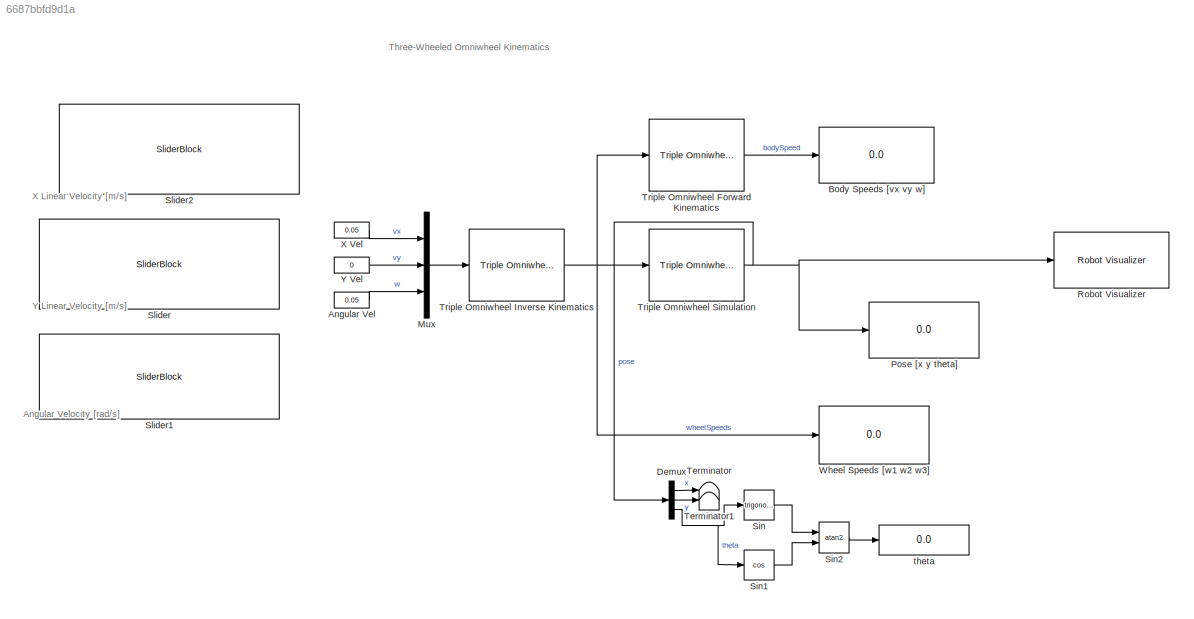
MODEL slx_6687bbfd9d1a
KIND model
CONFIG AbsTol = auto
CONFIG EnableMultiTasking = off
CONFIG FixedStep = auto
CONFIG MaxStep = auto
CONFIG MinStep = auto
CONFIG RelTol = 1e-3
CONFIG SampleTimeConstraint = Unconstrained
CONFIG Solver = VariableStepAuto
CONFIG SolverName = VariableStepAuto
CONFIG StartTime = 0.0
CONFIG StopTime = inf
BLOCK [Constant] Angular Vel
  Value = 0.05
BLOCK [Display] Body Speeds [vx vy w]
  Decimation = 1
  Ports = [1]
BLOCK [Demux] Demux
  Outputs = 3
  Ports = [1, 3]
BLOCK [Mux] Mux
  DisplayOption = bar
  Inputs = 3
  Ports = [3, 1]
BLOCK [Display] Pose [x y theta]
  Decimation = 1
  Ports = [1]
BLOCK [Reference] Robot Visualizer  REF=mobileRoboticsLib/Environments/Robot Visualizer
  Ports = [1]
  Priority = 99
  SourceBlock = mobileRoboticsLib/Environments/Robot Visualizer
  SourceProductName = Ground Vehicles Library
  SourceType = Visualizer2D
BLOCK [Trigonometry] Sin
  OutputSignalType = real
  Ports = [1, 1]
BLOCK [Trigonometry] Sin1
  Operator = cos
  OutputSignalType = real
  Ports = [1, 1]
BLOCK [Trigonometry] Sin2
  Operator = atan2
  OutputSignalType = real
  Ports = [2, 1]
BLOCK [SliderBlock] Slider
  ScaleMax = 1
  ScaleMin = -1
  TickInterval = 0.25
BLOCK [SliderBlock] Slider1
  ScaleMax = 1.5
  ScaleMin = -1.5
BLOCK [SliderBlock] Slider2
  ScaleMax = 1
  ScaleMin = -1
  TickInterval = 0.25
BLOCK [Terminator] Terminator
BLOCK [Terminator] Terminator1
BLOCK [Reference] Triple Omniwheel Forward Kinematics  REF=mobileRoboticsLib/Kinematic Models/Triple Omniwheel/Triple Omniwheel
Forward Kinematics
  Ports = [1, 1]
  SourceBlock = mobileRoboticsLib/Kinematic Models/Triple Omniwheel/Triple Omniwheel\nForward Kinematics
  SourceProductName = Mobile Robotics Simulation Library
  SourceType = Triple Omniwheel Forward Kinematics
BLOCK [Reference] Triple Omniwheel Inverse Kinematics   REF=mobileRoboticsLib/Kinematic Models/Triple Omniwheel/Triple Omniwheel
Inverse Kinematics 
  Ports = [1, 1]
  SourceBlock = mobileRoboticsLib/Kinematic Models/Triple Omniwheel/Triple Omniwheel\nInverse Kinematics
  SourceProductName = Mobile Robotics Simulation Library
  SourceType = Triple Omniwheel Inverse Kinematics
BLOCK [Reference] Triple Omniwheel Simulation  REF=mobileRoboticsLib/Kinematic Models/Triple Omniwheel/Triple Omniwheel Simulation
  Ports = [1, 1]
  SourceBlock = mobileRoboticsLib/Kinematic Models/Triple Omniwheel/Triple Omniwheel Simulation
  SourceProductName = Mobile Robotics Simulation Library
  SourceType = Triple Omniwheel Simulation
BLOCK [Display] Wheel Speeds [w1 w2 w3]
  Decimation = 1
  Ports = [1]
BLOCK [Constant] X Vel
  Value = 0.05
BLOCK [Constant] Y Vel
  Value = 0
BLOCK [Display] theta
  Decimation = 1
  Ports = [1]
ANNOTATION (root): Three-Wheeled Omniwheel Kinematics
ANNOTATION (root): Angular Velocity [rad/s]
ANNOTATION (root): X Linear Velocity [m/s]
ANNOTATION (root): Y Linear Velocity [m/s]
LINE Angular Vel:1 -> Mux:3
LINE Demux:1 -> Terminator:1
LINE Demux:2 -> Terminator1:1
NET Demux:3 -> Sin1:1, Sin:1
LINE Mux:1 -> Triple Omniwheel Inverse Kinematics :1
LINE Sin1:1 -> Sin2:2
LINE Sin2:1 -> theta:1
LINE Sin:1 -> Sin2:1
LINE Triple Omniwheel Forward Kinematics:1 -> Body Speeds [vx vy w]:1
NET Triple Omniwheel Inverse Kinematics :1 -> Triple Omniwheel Forward Kinematics:1, Triple Omniwheel Simulation:1, Wheel Speeds [w1 w2 w3]:1
NET Triple Omniwheel Simulation:1 -> Demux:1, Pose [x y theta]:1, Robot Visualizer:1
LINE X Vel:1 -> Mux:1
LINE Y Vel:1 -> Mux:2
note: NET lines group one-source signal fan-out (src -> all destinations, sorted); 1:1 wires keep LINE
